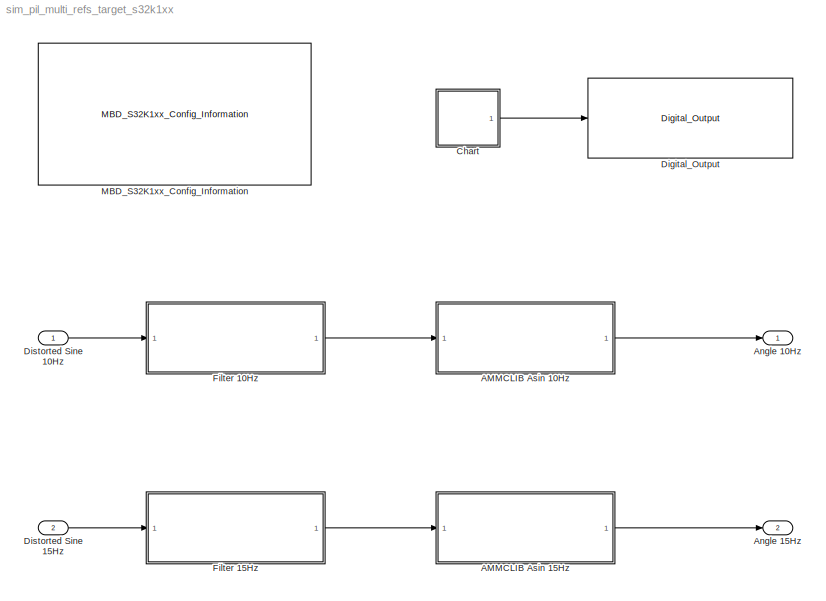
MODEL sim_pil_multi_refs_target_s32k1xx
KIND model
CONFIG InitFcn = mbd_s32k_consistency_checks(bdroot(gcs));
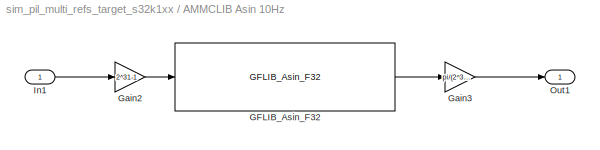
BLOCK [SubSystem] AMMCLIB Asin 10Hz
  Ports = [1, 1]
  RequestExecContextInheritance = off
  SID = 95
  Variant = off
BLOCK [Reference] AMMCLIB Asin 10Hz/GFLIB_Asin_F32  REF=ammclib_bam_s32k14x/GFLIB/bam_f32/GFLIB_Asin_F32  (lib defined in mdl_f341c9dd7fd9)
  Ports = [1, 1]
  SID = 87
  SourceBlock = ammclib_bam_s32k14x/GFLIB/bam_f32/GFLIB_Asin_F32
  SourceType = GFLIB_Asin_F32
BLOCK [Gain] AMMCLIB Asin 10Hz/Gain2
  Gain = 2^31-1
  OutDataTypeStr = int32
  ParamDataTypeStr = Inherit: Inherit via internal rule
  SID = 84
  SaturateOnIntegerOverflow = off
BLOCK [Gain] AMMCLIB Asin 10Hz/Gain3
  Gain = pi/(2^31-1)
  OutDataTypeStr = single
  ParamDataTypeStr = Inherit: Inherit via internal rule
  SID = 93
  SaturateOnIntegerOverflow = off
BLOCK [Inport] AMMCLIB Asin 10Hz/In1
  IconDisplay = Port number
  SID = 96
BLOCK [Outport] AMMCLIB Asin 10Hz/Out1
  IconDisplay = Port number
  SID = 97
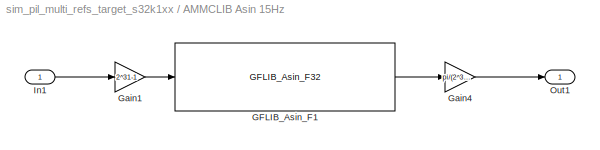
BLOCK [SubSystem] AMMCLIB Asin 15Hz
  Ports = [1, 1]
  RequestExecContextInheritance = off
  SID = 98
  Variant = off
BLOCK [Reference] AMMCLIB Asin 15Hz/GFLIB_Asin_F1  REF=ammclib_bam_s32k14x/GFLIB/bam_f32/GFLIB_Asin_F32  (lib defined in mdl_f341c9dd7fd9)
  Ports = [1, 1]
  SID = 88
  SourceBlock = ammclib_bam_s32k14x/GFLIB/bam_f32/GFLIB_Asin_F32
  SourceType = GFLIB_Asin_F32
BLOCK [Gain] AMMCLIB Asin 15Hz/Gain1
  Gain = 2^31-1
  OutDataTypeStr = int32
  ParamDataTypeStr = Inherit: Inherit via internal rule
  SID = 86
  SaturateOnIntegerOverflow = off
BLOCK [Gain] AMMCLIB Asin 15Hz/Gain4
  Gain = pi/(2^31-1)
  OutDataTypeStr = single
  ParamDataTypeStr = Inherit: Inherit via internal rule
  SID = 94
  SaturateOnIntegerOverflow = off
BLOCK [Inport] AMMCLIB Asin 15Hz/In1
  IconDisplay = Port number
  SID = 99
BLOCK [Outport] AMMCLIB Asin 15Hz/Out1
  IconDisplay = Port number
  SID = 100
BLOCK [Outport] Angle 10Hz
  IconDisplay = Port number
  SID = 45
BLOCK [Outport] Angle 15Hz
  IconDisplay = Port number
  Port = 2
  SID = 46
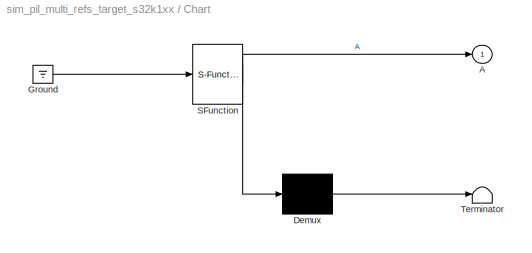
BLOCK [SubSystem] Chart
  ErrorFcn = Stateflow.Translate.translate
  PermitHierarchicalResolution = ExplicitOnly
  Ports = [0, 1]
  RequestExecContextInheritance = off
  SFBlockType = Chart
  SID = 71
  TreatAsAtomicUnit = on
  Variant = off
BLOCK [Outport] Chart/ A
  IconDisplay = Port number
  SID = 71::6
BLOCK [Demux] Chart/ Demux 
  Outputs = 1
  Ports = [1, 1]
  SID = 71::36
BLOCK [Ground] Chart/ Ground 
  SID = 71::38
BLOCK [S-Function] Chart/ SFunction 
  EnableBusSupport = on
  FunctionName = sf_sfun
  PortCounts = [1 2]
  Ports = [1, 2]
  SFcnIsStateOwnerBlock = off
  SFunctionDeploymentMode = off
  SID = 71::35
  Tag = Stateflow S-Function sim_pil_multi_refs_target_s32k1xx 3
BLOCK [Terminator] Chart/ Terminator 
  SID = 71::37
BLOCK [Reference] Digital_Output  REF=mbd_s32k1xx_ec_toolbox/GPIO Blocks/Digital_Output
  Ports = [1]
  SID = 72
  SourceBlock = mbd_s32k1xx_ec_toolbox/GPIO Blocks/Digital_Output
  SourceType = gpio_s32k_output
  drive_strength = Low
  gpio_pin = PTD0: [PTD0 | Port D I/O]
  init_val = Low
BLOCK [Inport] Distorted Sine 10Hz
  IconDisplay = Port number
  OutDataTypeStr = single
  SID = 38
BLOCK [Inport] Distorted Sine 15Hz
  IconDisplay = Port number
  OutDataTypeStr = single
  Port = 2
  SID = 39
BLOCK [ModelReference] Filter 10Hz
  ModelNameDialog = sim_pil_multi_refs_target_filter_s32k1xx.mdl
  ModelReferenceVersion = 1.200
  Ports = [1, 1]
  SID = 47
  Variant = off
BLOCK [ModelReference] Filter 15Hz
  ModelNameDialog = sim_pil_multi_refs_target_filter_s32k1xx.mdl
  ModelReferenceVersion = 1.200
  Ports = [1, 1]
  SID = 48
  Variant = off
BLOCK [Reference] MBD_S32K1xx_Config_Information  REF=mbd_s32k1xx_ec_toolbox/MBD_S32K1xx_Config_Information
  ADC_PcrCheckEnDis = on
  AMMCLIB_PcrCheckEnDis = on
  CMP_PcrCheckEnDis = on
  CSEc_PcrCheckEnDis = on
  ConfigParams_PcrCheckEnDis = on
  FM_PcrCheckEnDis = on
  FTM_Dual_Edge_Inputs_PcrCheckEnDis = on
  FTM_Hall_Sensor_Inputs_PcrCheckEnDis = on
  FTM_Input_Edge_Inputs_PcrCheckEnDis = on
  FTM_PWM_PcrCheckEnDis = on
  FTM_Quadrature_Inputs_PcrCheckEnDis = on
  FlexCAN_PcrCheckEnDis = on
  FlexIO_PcrCheckEnDis = on
  GPIO_InputPcrCheckEnDis = on
  GPIO_OutputPcrCheckEnDis = on
  LIN_PcrCheckEnDis = on
  LPI2C_PcrCheckEnDis = on
  LPSPI_PcrCheckEnDis = on
  LPTMR_PcrCheckEnDis = on
  LPUART_PcrCheckEnDis = on
  ModelRef_PcrCheckEnDis = on
  PDB0_PcrCheckEnDis = on
  PIT_PcrCheckEnDis = on
  Ports = []
  Profile_PcrCheckEnDis = on
  RTC_PcrCheckEnDis = on
  SBC_PcrCheckEnDis = on
  SID = 108
  SourceBlock = mbd_s32k1xx_ec_toolbox/MBD_S32K1xx_Config_Information
  SourceType = MBDTBX_EC_S32K
  WDOG_PcrCheckEnDis = on
  config_params = []
  disp_str = Target : S32K144-64KB_SRAM\nPackage : 100-pin\nSystem clock : 80 MHz\nXTAL clock : External 8 MHz\nCompiler : GCC\nTarget Type : FLASH\nProcessor-In-Loop : (COM4, 115200, OpenSDA: D)\nStep Tick Interrupt Priority : 15
  ds_import_enable = off
  eDMA_PcrCheckEnDis = on
  gcc_target_assemble_opts = -mthumb -mfloat-abi=hard -mfpu=fpv4-sp-d16 -g
  gcc_target_compile_opts = -mthumb -mfloat-abi=hard -mfpu=fpv4-sp-d16 -O1 -g -gstrict-dwarf
  gcc_target_default_lcf = on
  gcc_target_link_opts = -mthumb -mfloat-abi=hard -mfpu=fpv4-sp-d16
  gcc_target_user_lcf = S32K144_64_flash.ld
  ghs_target_assemble_opts = -cpu=cortexm4f -fpu=vfpv4_d16
  ghs_target_compile_opts = -cpu=cortexm4f -thumb -DARM_MATH_CM4 -fpu=vfpv4_d16 -fsingle -Ogeneral -Wundef -Wimplicit-int -Wshadow -Wtrigraphs --no_commons --gnu_asm -gnu99 -gdwarf-2 -G
  ghs_target_default_lcf = off
  ghs_target_link_opts = -cpu=cortexm4f -thumb -fpu=vfpv4_d16
  ghs_target_user_lcf = S32K144_64_flash.ld
  iar_target_assemble_opts = --cpu Cortex-M4F --thumb --fpu VFPv4_sp
  iar_target_compile_opts = --cpu=Cortex-M4F --thumb --fpu=VFPv4_sp -Ol -e --debug --dlib_config normal
  iar_target_default_lcf = off
  iar_target_link_opts = --no_exceptions --vfe --inline
  iar_target_user_lcf = S32K144_64_flash.icf
  mbdt_ver = 0
  mcu_steptick_prio = 15
  mcu_steptick_timer = LPIT Channel 0
  mcu_system_clock_freq = 80
  mcu_target_name = S32K144
  mcu_target_package = 100-LQFP
  mcu_target_sram_size = 64KB
  mcu_xtal_freq = External 8
  pil_download_enable = on
  pil_download_rate = 57600
  pil_opensda_drive = Custom
  pil_opensda_drive_custom = D
  pil_uart_instance = 1
  pil_uart_rx = PTC6: [LPUART1_RX | Receive]
  pil_uart_tx = PTC7: [LPUART1_TX | Transmit]
  rbl_com_port = Custom
  rbl_com_port_custom = COM1
  rbl_download_enable = off
  rbl_download_interface = OpenSDA
  rbl_restart_request = off
  rbl_start_delay = 5000000
  target_compiler = GCC
  target_memory = FLASH
LINE AMMCLIB Asin 10Hz/GFLIB_Asin_F32:1 -> AMMCLIB Asin 10Hz/Gain3:1
LINE AMMCLIB Asin 10Hz/Gain2:1 -> AMMCLIB Asin 10Hz/GFLIB_Asin_F32:1
LINE AMMCLIB Asin 10Hz/Gain3:1 -> AMMCLIB Asin 10Hz/Out1:1
LINE AMMCLIB Asin 10Hz/In1:1 -> AMMCLIB Asin 10Hz/Gain2:1
LINE AMMCLIB Asin 10Hz:1 -> Angle 10Hz:1
LINE AMMCLIB Asin 15Hz/GFLIB_Asin_F1:1 -> AMMCLIB Asin 15Hz/Gain4:1
LINE AMMCLIB Asin 15Hz/Gain1:1 -> AMMCLIB Asin 15Hz/GFLIB_Asin_F1:1
LINE AMMCLIB Asin 15Hz/Gain4:1 -> AMMCLIB Asin 15Hz/Out1:1
LINE AMMCLIB Asin 15Hz/In1:1 -> AMMCLIB Asin 15Hz/Gain1:1
LINE AMMCLIB Asin 15Hz:1 -> Angle 15Hz:1
LINE Chart/ Demux :1 -> Chart/ Terminator :1
LINE Chart/ Ground :1 -> Chart/ SFunction :1
LINE Chart/ SFunction :1 -> Chart/ Demux :1
LINE Chart/ SFunction :2 -> Chart/ A:1
LINE Chart:1 -> Digital_Output:1
LINE Distorted Sine 10Hz:1 -> Filter 10Hz:1
LINE Distorted Sine 15Hz:1 -> Filter 15Hz:1
LINE Filter 10Hz:1 -> AMMCLIB Asin 10Hz:1
LINE Filter 15Hz:1 -> AMMCLIB Asin 15Hz:1
CHART Chart states=2 transitions=3
  STATE_LABEL 'A'
  STATE_LABEL 'A1'
